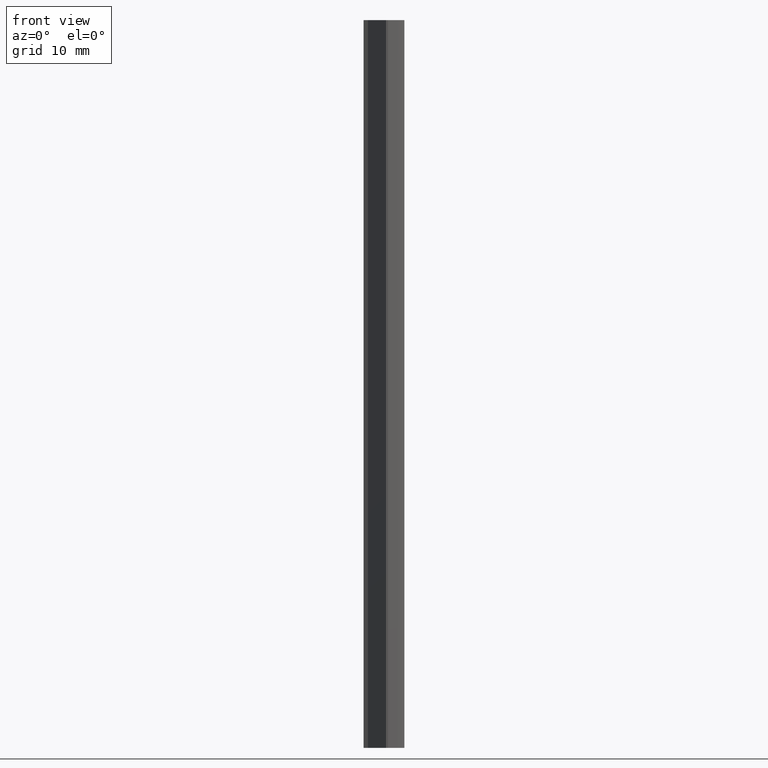
[diagram: clean part render]
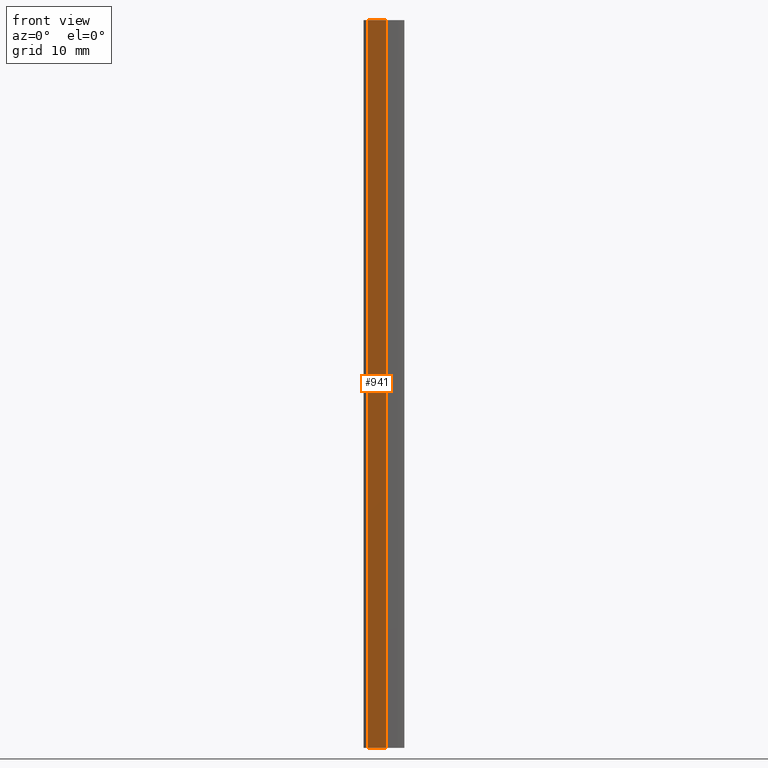
[diagram: same view with one face highlighted and labeled with its STEP entity id]
A machine part, front view. The second image highlights one B-rep face of the part: STEP entity #941.
In plain terms, the highlighted planar face has unit normal (-0.7467, -0.6652, 0).
Its self-contained STEP definition (entity closure, byte-faithful):
#883=CARTESIAN_POINT('',(-2.568957043376031,2.774102460295580,0.0));
#884=VERTEX_POINT('',#883);
#892=CARTESIAN_POINT('',(-2.568957043376031,2.774102460295580,100.0));
#893=VERTEX_POINT('',#892);
#894=CARTESIAN_POINT('',(-2.568957043376031,2.774102460295580,0.0));
#895=DIRECTION('',(0.0,0.0,1.0));
#896=VECTOR('',#895,100.0);
#897=LINE('',#894,#896);
#898=EDGE_CURVE('',#884,#893,#897,.T.);
#911=CARTESIAN_POINT('',(-2.568957043376031,2.774102460295580,0.0));
#912=DIRECTION('',(-0.746680531138299,-0.665182820297568,0.0));
#913=DIRECTION('',(0.665182820297568,-0.746680531138299,0.0));
#914=AXIS2_PLACEMENT_3D('',#911,#912,#913);
#915=PLANE('',#914);
#916=CARTESIAN_POINT('',(-0.101715935064931,0.004576782564072,0.0));
#917=VERTEX_POINT('',#916);
#918=CARTESIAN_POINT('',(-2.568957043376031,2.774102460295580,0.0));
#919=DIRECTION('',(0.665182820297557,-0.746680531138309,0.0));
#920=VECTOR('',#919,3.709117302830226);
#921=LINE('',#918,#920);
#922=EDGE_CURVE('',#884,#917,#921,.T.);
#923=ORIENTED_EDGE('',*,*,#922,.T.);
#924=CARTESIAN_POINT('',(-0.101715935064931,0.004576782564072,100.0));
#925=VERTEX_POINT('',#924);
#926=CARTESIAN_POINT('',(-0.101715935064931,0.004576782564072,0.0));
#927=DIRECTION('',(0.0,0.0,1.0));
#928=VECTOR('',#927,100.0);
#929=LINE('',#926,#928);
#930=EDGE_CURVE('',#917,#925,#929,.T.);
#931=ORIENTED_EDGE('',*,*,#930,.T.);
#932=CARTESIAN_POINT('',(-2.568957043376031,2.774102460295580,100.0));
#933=DIRECTION('',(0.665182820297557,-0.746680531138309,0.0));
#934=VECTOR('',#933,3.709117302830226);
#935=LINE('',#932,#934);
#936=EDGE_CURVE('',#893,#925,#935,.T.);
#937=ORIENTED_EDGE('',*,*,#936,.F.);
#938=ORIENTED_EDGE('',*,*,#898,.F.);
#939=EDGE_LOOP('',(#923,#931,#937,#938));
#940=FACE_OUTER_BOUND('',#939,.T.);
#941=ADVANCED_FACE('',(#940),#915,.T.);